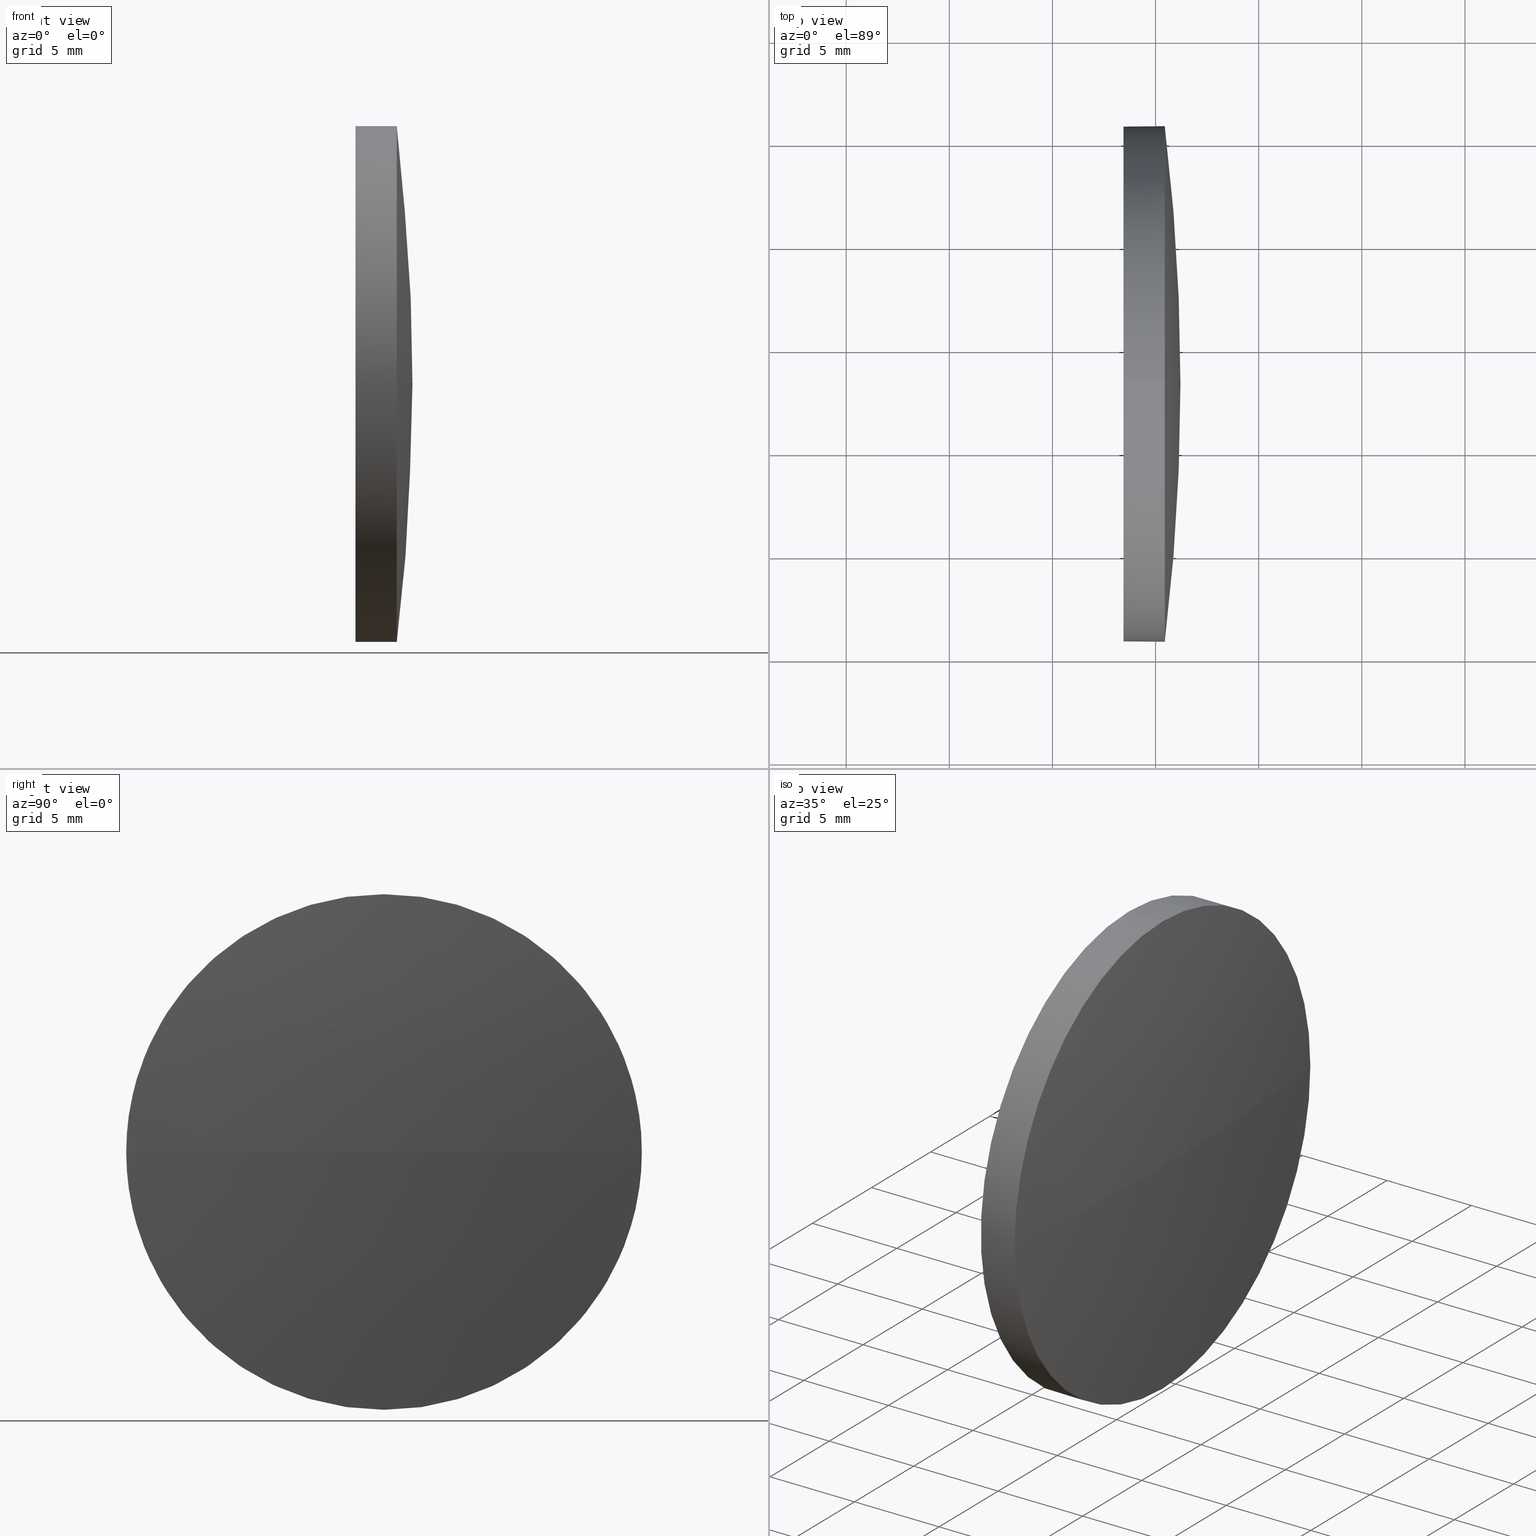
[diagram: canonical four-view strip — front | top / right | iso, engineering-drawing reading convention]
A machine part, canonical four-view strip (front | top / right | iso — engineering-drawing reading convention). The complete STEP part file that produces these views, byte-faithful:
ISO-10303-21;
HEADER;
FILE_DESCRIPTION (( 'STEP AP214' ),
    '1' );
FILE_NAME ('100133.STEP',
    '2019-05-15T01:51:21',
    ( '' ),
    ( '' ),
    'SwSTEP 2.0',
    'SolidWorks 2016',
    '' );
FILE_SCHEMA (( 'AUTOMOTIVE_DESIGN' ));
ENDSEC;

DATA;
#1 = CIRCLE ( 'NONE', #155, 12.49999999999999600 ) ;
#2 = VERTEX_POINT ( 'NONE', #161 ) ;
#3 = EDGE_CURVE ( 'NONE', #50, #124, #34, .T. ) ;
#4 =( NAMED_UNIT ( * ) PLANE_ANGLE_UNIT ( ) SI_UNIT ( $, .RADIAN. ) );
#5 = FACE_OUTER_BOUND ( 'NONE', #70, .T. ) ;
#6 = CARTESIAN_POINT ( 'NONE',  ( 303.0318704595082400, 108.2513484294472100, 0.0000000000000000000 ) ) ;
#7 = DIRECTION ( 'NONE',  ( -1.000000000000000000, -0.0000000000000000000, -0.0000000000000000000 ) ) ;
#8 = DIRECTION ( 'NONE',  ( 0.0000000000000000000, 0.0000000000000000000, 1.000000000000000000 ) ) ;
#9 = PRODUCT_RELATED_PRODUCT_CATEGORY ( 'part', '', ( #22 ) ) ;
#10 = ADVANCED_FACE ( 'NONE', ( #75 ), #104, .T. ) ;
#11 = DIRECTION ( 'NONE',  ( 0.0000000000000000000, 0.0000000000000000000, 1.000000000000000000 ) ) ;
#12 = ORIENTED_EDGE ( 'NONE', *, *, #141, .T. ) ;
#13 = EDGE_CURVE ( 'NONE', #90, #50, #142, .T. ) ;
#14 = AXIS2_PLACEMENT_3D ( 'NONE', #20, #179, #18 ) ;
#15 = PLANE ( 'NONE',  #49 ) ;
#16 = ORIENTED_EDGE ( 'NONE', *, *, #42, .F. ) ;
#17 =( NAMED_UNIT ( * ) SI_UNIT ( $, .STERADIAN. ) SOLID_ANGLE_UNIT ( ) );
#18 = DIRECTION ( 'NONE',  ( 0.0000000000000000000, 0.0000000000000000000, 1.000000000000000000 ) ) ;
#19 = EDGE_CURVE ( 'NONE', #159, #2, #67, .T. ) ;
#20 = CARTESIAN_POINT ( 'NONE',  ( 405.4479230910874300, 108.2513484294471600, 0.0000000000000000000 ) ) ;
#21 = PRODUCT_DEFINITION_FORMATION_WITH_SPECIFIED_SOURCE ( '�κ�', '', #22, .NOT_KNOWN. ) ;
#22 = PRODUCT ( '100133', '100133', '', ( #98 ) ) ;
#23 = ORIENTED_EDGE ( 'NONE', *, *, #138, .T. ) ;
#24 = AXIS2_PLACEMENT_3D ( 'NONE', #92, #66, #178 ) ;
#25 = UNCERTAINTY_MEASURE_WITH_UNIT (LENGTH_MEASURE( 1.000000000000000100E-005 ), #160, 'distance_accuracy_value', 'NONE');
#26 = COLOUR_RGB ( '',1.000000000000000000, 1.000000000000000000, 1.000000000000000000 ) ;
#27 = EDGE_CURVE ( 'NONE', #52, #90, #145, .T. ) ;
#28 = ORIENTED_EDGE ( 'NONE', *, *, #3, .T. ) ;
#29 = DIRECTION ( 'NONE',  ( 0.0000000000000000000, 0.0000000000000000000, 1.000000000000000000 ) ) ;
#30 = CYLINDRICAL_SURFACE ( 'NONE', #101, 12.49999999999999600 ) ;
#31 = AXIS2_PLACEMENT_3D ( 'NONE', #164, #106, #108 ) ;
#32 = CARTESIAN_POINT ( 'NONE',  ( 405.4479230910874300, 120.7513484294471200, 1.530808498934179500E-015 ) ) ;
#33 = CARTESIAN_POINT ( 'NONE',  ( 401.0823071883264700, 108.2513484294471600, 0.0000000000000000000 ) ) ;
#34 = LINE ( 'NONE', #174, #97 ) ;
#35 = DIRECTION ( 'NONE',  ( -1.000000000000000000, -0.0000000000000000000, -0.0000000000000000000 ) ) ;
#36 = COLOUR_RGB ( '',1.000000000000000000, 1.000000000000000000, 1.000000000000000000 ) ;
#37 = ORIENTED_EDGE ( 'NONE', *, *, #99, .F. ) ;
#38 = MECHANICAL_DESIGN_GEOMETRIC_PRESENTATION_REPRESENTATION (  '', ( #51 ), #175 ) ;
#39 = ORIENTED_EDGE ( 'NONE', *, *, #72, .F. ) ;
#40 = CARTESIAN_POINT ( 'NONE',  ( 405.4479230910874300, 108.2513484294471600, 12.49999999999999600 ) ) ;
#41 = SPHERICAL_SURFACE ( 'NONE', #78, 103.1760526315792000 ) ;
#42 = EDGE_CURVE ( 'NONE', #165, #159, #48, .T. ) ;
#43 = CARTESIAN_POINT ( 'NONE',  ( 303.0318704595082400, 108.2513484294472100, 0.0000000000000000000 ) ) ;
#44 =( NAMED_UNIT ( * ) PLANE_ANGLE_UNIT ( ) SI_UNIT ( $, .RADIAN. ) );
#45 = FILL_AREA_STYLE ('',( #135 ) ) ;
#46 = DIRECTION ( 'NONE',  ( 0.0000000000000000000, 0.0000000000000000000, 1.000000000000000000 ) ) ;
#47 = DIRECTION ( 'NONE',  ( 0.0000000000000000000, 0.0000000000000000000, 1.000000000000000000 ) ) ;
#48 = CIRCLE ( 'NONE', #57, 12.49999999999999600 ) ;
#49 = AXIS2_PLACEMENT_3D ( 'NONE', #162, #182, #115 ) ;
#50 = VERTEX_POINT ( 'NONE', #40 ) ;
#51 = STYLED_ITEM ( 'NONE', ( #120 ), #180 ) ;
#52 = VERTEX_POINT ( 'NONE', #58 ) ;
#53 = AXIS2_PLACEMENT_3D ( 'NONE', #129, #7, #126 ) ;
#54 = CIRCLE ( 'NONE', #24, 103.1760526315792000 ) ;
#55 = MANIFOLD_SOLID_BREP ( '��ת1', #186 ) ;
#56 = SURFACE_SIDE_STYLE ('',( #140 ) ) ;
#57 = AXIS2_PLACEMENT_3D ( 'NONE', #113, #130, #29 ) ;
#58 = CARTESIAN_POINT ( 'NONE',  ( 406.2079230910874200, 108.2513484294472100, 0.0000000000000000000 ) ) ;
#59 = SPHERICAL_SURFACE ( 'NONE', #60, 103.1760526315792000 ) ;
#60 = AXIS2_PLACEMENT_3D ( 'NONE', #6, #11, #118 ) ;
#61 = ORIENTED_EDGE ( 'NONE', *, *, #13, .F. ) ;
#62 = DIRECTION ( 'NONE',  ( 0.0000000000000000000, 0.0000000000000000000, 1.000000000000000000 ) ) ;
#63 = ADVANCED_FACE ( 'NONE', ( #105 ), #15, .F. ) ;
#64 = PRODUCT_DEFINITION_SHAPE ( 'NONE', 'NONE',  #122 ) ;
#65 = ADVANCED_FACE ( 'NONE', ( #5 ), #59, .T. ) ;
#66 = DIRECTION ( 'NONE',  ( 0.0000000000000000000, -1.224646799147353200E-016, 1.000000000000000000 ) ) ;
#67 = LINE ( 'NONE', #87, #109 ) ;
#68 = ORIENTED_EDGE ( 'NONE', *, *, #157, .F. ) ;
#69 = AXIS2_PLACEMENT_3D ( 'NONE', #167, #117, #62 ) ;
#70 = EDGE_LOOP ( 'NONE', ( #103, #82, #112, #61 ) ) ;
#71 = PRESENTATION_LAYER_ASSIGNMENT (  '', '', ( #51 ) ) ;
#72 = EDGE_CURVE ( 'NONE', #159, #90, #133, .T. ) ;
#73 = UNCERTAINTY_MEASURE_WITH_UNIT (LENGTH_MEASURE( 1.000000000000000100E-005 ), #134, 'distance_accuracy_value', 'NONE');
#74 = FILL_AREA_STYLE_COLOUR ( '', #26 ) ;
#75 = FACE_OUTER_BOUND ( 'NONE', #86, .T. ) ;
#76 = CARTESIAN_POINT ( 'NONE',  ( 303.0318704595082400, 108.2513484294472100, 0.0000000000000000000 ) ) ;
#77 = AXIS2_PLACEMENT_3D ( 'NONE', #89, #147, #132 ) ;
#78 = AXIS2_PLACEMENT_3D ( 'NONE', #43, #46, #152 ) ;
#79 = ADVANCED_FACE ( 'NONE', ( #85 ), #41, .T. ) ;
#80 = DIRECTION ( 'NONE',  ( -1.000000000000000000, -0.0000000000000000000, -0.0000000000000000000 ) ) ;
#81 =( LENGTH_UNIT ( ) NAMED_UNIT ( * ) SI_UNIT ( .MILLI., .METRE. ) );
#82 = ORIENTED_EDGE ( 'NONE', *, *, #99, .T. ) ;
#83 = SURFACE_STYLE_USAGE ( .BOTH. , #166 ) ;
#84 = MECHANICAL_DESIGN_GEOMETRIC_PRESENTATION_REPRESENTATION (  '', ( #131 ), #146 ) ;
#85 = FACE_OUTER_BOUND ( 'NONE', #170, .T. ) ;
#86 = EDGE_LOOP ( 'NONE', ( #128, #111, #123, #28, #156 ) ) ;
#87 = CARTESIAN_POINT ( 'NONE',  ( 401.0823071883264700, 108.2513484294471600, -12.49999999999999600 ) ) ;
#88 = SURFACE_STYLE_USAGE ( .BOTH. , #56 ) ;
#89 = CARTESIAN_POINT ( 'NONE',  ( 405.4479230910874300, 108.2513484294471600, 0.0000000000000000000 ) ) ;
#90 = VERTEX_POINT ( 'NONE', #114 ) ;
#91 = DIRECTION ( 'NONE',  ( -1.000000000000000000, -0.0000000000000000000, -0.0000000000000000000 ) ) ;
#92 = CARTESIAN_POINT ( 'NONE',  ( 303.0318704595082400, 108.2513484294472100, 0.0000000000000000000 ) ) ;
#93 = ORIENTED_EDGE ( 'NONE', *, *, #42, .T. ) ;
#94 =( NAMED_UNIT ( * ) SI_UNIT ( $, .STERADIAN. ) SOLID_ANGLE_UNIT ( ) );
#95 = ADVANCED_FACE ( 'NONE', ( #100 ), #30, .T. ) ;
#96 =( NAMED_UNIT ( * ) SI_UNIT ( $, .STERADIAN. ) SOLID_ANGLE_UNIT ( ) );
#97 = VECTOR ( 'NONE', #173, 1000.000000000000000 ) ;
#98 = PRODUCT_CONTEXT ( 'NONE', #149, 'mechanical' ) ;
#99 = EDGE_CURVE ( 'NONE', #52, #165, #54, .T. ) ;
#100 = FACE_OUTER_BOUND ( 'NONE', #102, .T. ) ;
#101 = AXIS2_PLACEMENT_3D ( 'NONE', #33, #35, #8 ) ;
#102 = EDGE_LOOP ( 'NONE', ( #93, #125, #68, #151, #12 ) ) ;
#103 = ORIENTED_EDGE ( 'NONE', *, *, #27, .F. ) ;
#104 = CYLINDRICAL_SURFACE ( 'NONE', #53, 12.49999999999999600 ) ;
#105 = FACE_OUTER_BOUND ( 'NONE', #177, .T. ) ;
#106 = DIRECTION ( 'NONE',  ( -1.000000000000000000, -0.0000000000000000000, -0.0000000000000000000 ) ) ;
#107 =( GEOMETRIC_REPRESENTATION_CONTEXT ( 3 ) GLOBAL_UNCERTAINTY_ASSIGNED_CONTEXT ( ( #73 ) ) GLOBAL_UNIT_ASSIGNED_CONTEXT ( ( #134, #44, #17 ) ) REPRESENTATION_CONTEXT ( 'NONE', 'WORKASPACE' ) );
#108 = DIRECTION ( 'NONE',  ( 0.0000000000000000000, 0.0000000000000000000, 1.000000000000000000 ) ) ;
#109 = VECTOR ( 'NONE', #91, 1000.000000000000000 ) ;
#110 = CIRCLE ( 'NONE', #14, 12.49999999999999600 ) ;
#111 = ORIENTED_EDGE ( 'NONE', *, *, #72, .T. ) ;
#112 = ORIENTED_EDGE ( 'NONE', *, *, #141, .F. ) ;
#113 = CARTESIAN_POINT ( 'NONE',  ( 405.4479230910874300, 108.2513484294471600, 0.0000000000000000000 ) ) ;
#114 = CARTESIAN_POINT ( 'NONE',  ( 405.4479230910874300, 95.75134842944724800, 0.0000000000000000000 ) ) ;
#115 = DIRECTION ( 'NONE',  ( 0.0000000000000000000, 0.0000000000000000000, -1.000000000000000000 ) ) ;
#116 = SHAPE_DEFINITION_REPRESENTATION ( #64, #180 ) ;
#117 = DIRECTION ( 'NONE',  ( -1.000000000000000000, -0.0000000000000000000, -0.0000000000000000000 ) ) ;
#118 = DIRECTION ( 'NONE',  ( 0.0000000000000000000, -1.000000000000000000, 0.0000000000000000000 ) ) ;
#119 = CARTESIAN_POINT ( 'NONE',  ( 403.4479230910874300, 108.2513484294471600, 0.0000000000000000000 ) ) ;
#120 = PRESENTATION_STYLE_ASSIGNMENT (( #83 ) ) ;
#121 = AXIS2_PLACEMENT_3D ( 'NONE', #76, #171, #127 ) ;
#122 = PRODUCT_DEFINITION ( 'δ֪', '', #21, #137 ) ;
#123 = ORIENTED_EDGE ( 'NONE', *, *, #13, .T. ) ;
#124 = VERTEX_POINT ( 'NONE', #150 ) ;
#125 = ORIENTED_EDGE ( 'NONE', *, *, #19, .T. ) ;
#126 = DIRECTION ( 'NONE',  ( 0.0000000000000000000, 0.0000000000000000000, 1.000000000000000000 ) ) ;
#127 = DIRECTION ( 'NONE',  ( -1.000000000000000000, 0.0000000000000000000, 0.0000000000000000000 ) ) ;
#128 = ORIENTED_EDGE ( 'NONE', *, *, #19, .F. ) ;
#129 = CARTESIAN_POINT ( 'NONE',  ( 401.0823071883264700, 108.2513484294471600, 0.0000000000000000000 ) ) ;
#130 = DIRECTION ( 'NONE',  ( -1.000000000000000000, -0.0000000000000000000, -0.0000000000000000000 ) ) ;
#131 = STYLED_ITEM ( 'NONE', ( #172 ), #55 ) ;
#132 = DIRECTION ( 'NONE',  ( 0.0000000000000000000, 0.0000000000000000000, 1.000000000000000000 ) ) ;
#133 = CIRCLE ( 'NONE', #31, 12.49999999999999600 ) ;
#134 =( LENGTH_UNIT ( ) NAMED_UNIT ( * ) SI_UNIT ( .MILLI., .METRE. ) );
#135 = FILL_AREA_STYLE_COLOUR ( '', #36 ) ;
#136 = APPLICATION_PROTOCOL_DEFINITION ( 'draft international standard', 'automotive_design', 1998, #149 ) ;
#137 = PRODUCT_DEFINITION_CONTEXT ( 'detailed design', #153, 'design' ) ;
#138 = EDGE_CURVE ( 'NONE', #2, #124, #148, .T. ) ;
#139 = ORIENTED_EDGE ( 'NONE', *, *, #157, .T. ) ;
#140 = SURFACE_STYLE_FILL_AREA ( #144 ) ;
#141 = EDGE_CURVE ( 'NONE', #50, #165, #110, .T. ) ;
#142 = CIRCLE ( 'NONE', #77, 12.49999999999999600 ) ;
#143 = UNCERTAINTY_MEASURE_WITH_UNIT (LENGTH_MEASURE( 1.000000000000000100E-005 ), #81, 'distance_accuracy_value', 'NONE');
#144 = FILL_AREA_STYLE ('',( #74 ) ) ;
#145 = CIRCLE ( 'NONE', #121, 103.1760526315792000 ) ;
#146 =( GEOMETRIC_REPRESENTATION_CONTEXT ( 3 ) GLOBAL_UNCERTAINTY_ASSIGNED_CONTEXT ( ( #25 ) ) GLOBAL_UNIT_ASSIGNED_CONTEXT ( ( #160, #4, #94 ) ) REPRESENTATION_CONTEXT ( 'NONE', 'WORKASPACE' ) );
#147 = DIRECTION ( 'NONE',  ( -1.000000000000000000, -0.0000000000000000000, -0.0000000000000000000 ) ) ;
#148 = CIRCLE ( 'NONE', #69, 12.49999999999999600 ) ;
#149 = APPLICATION_CONTEXT ( 'automotive_design' ) ;
#150 = CARTESIAN_POINT ( 'NONE',  ( 403.4479230910874300, 108.2513484294471600, 12.49999999999999600 ) ) ;
#151 = ORIENTED_EDGE ( 'NONE', *, *, #3, .F. ) ;
#152 = DIRECTION ( 'NONE',  ( 0.0000000000000000000, -1.000000000000000000, 0.0000000000000000000 ) ) ;
#153 = APPLICATION_CONTEXT ( 'automotive_design' ) ;
#154 = PRESENTATION_LAYER_ASSIGNMENT (  '', '', ( #131 ) ) ;
#155 = AXIS2_PLACEMENT_3D ( 'NONE', #119, #80, #163 ) ;
#156 = ORIENTED_EDGE ( 'NONE', *, *, #138, .F. ) ;
#157 = EDGE_CURVE ( 'NONE', #124, #2, #1, .T. ) ;
#158 = SURFACE_STYLE_FILL_AREA ( #45 ) ;
#159 = VERTEX_POINT ( 'NONE', #176 ) ;
#160 =( LENGTH_UNIT ( ) NAMED_UNIT ( * ) SI_UNIT ( .MILLI., .METRE. ) );
#161 = CARTESIAN_POINT ( 'NONE',  ( 403.4479230910874300, 108.2513484294471600, -12.49999999999999600 ) ) ;
#162 = CARTESIAN_POINT ( 'NONE',  ( 403.4479230910874300, 108.2513484294471600, 0.0000000000000000000 ) ) ;
#163 = DIRECTION ( 'NONE',  ( 0.0000000000000000000, 0.0000000000000000000, 1.000000000000000000 ) ) ;
#164 = CARTESIAN_POINT ( 'NONE',  ( 405.4479230910874300, 108.2513484294471600, 0.0000000000000000000 ) ) ;
#165 = VERTEX_POINT ( 'NONE', #32 ) ;
#166 = SURFACE_SIDE_STYLE ('',( #158 ) ) ;
#167 = CARTESIAN_POINT ( 'NONE',  ( 403.4479230910874300, 108.2513484294471600, 0.0000000000000000000 ) ) ;
#168 = APPLICATION_PROTOCOL_DEFINITION ( 'draft international standard', 'automotive_design', 1998, #153 ) ;
#169 = AXIS2_PLACEMENT_3D ( 'NONE', #184, #47, #185 ) ;
#170 = EDGE_LOOP ( 'NONE', ( #37, #183, #39, #16 ) ) ;
#171 = DIRECTION ( 'NONE',  ( 0.0000000000000000000, 0.0000000000000000000, -1.000000000000000000 ) ) ;
#172 = PRESENTATION_STYLE_ASSIGNMENT (( #88 ) ) ;
#173 = DIRECTION ( 'NONE',  ( -1.000000000000000000, -0.0000000000000000000, -0.0000000000000000000 ) ) ;
#174 = CARTESIAN_POINT ( 'NONE',  ( 401.0823071883264700, 108.2513484294471600, 12.49999999999999600 ) ) ;
#175 =( GEOMETRIC_REPRESENTATION_CONTEXT ( 3 ) GLOBAL_UNCERTAINTY_ASSIGNED_CONTEXT ( ( #143 ) ) GLOBAL_UNIT_ASSIGNED_CONTEXT ( ( #81, #181, #96 ) ) REPRESENTATION_CONTEXT ( 'NONE', 'WORKASPACE' ) );
#176 = CARTESIAN_POINT ( 'NONE',  ( 405.4479230910874300, 108.2513484294471600, -12.49999999999999600 ) ) ;
#177 = EDGE_LOOP ( 'NONE', ( #139, #23 ) ) ;
#178 = DIRECTION ( 'NONE',  ( 0.0000000000000000000, -1.000000000000000000, -1.224646799147353200E-016 ) ) ;
#179 = DIRECTION ( 'NONE',  ( -1.000000000000000000, -0.0000000000000000000, -0.0000000000000000000 ) ) ;
#180 = ADVANCED_BREP_SHAPE_REPRESENTATION ( '100133', ( #55, #169 ), #107 ) ;
#181 =( NAMED_UNIT ( * ) PLANE_ANGLE_UNIT ( ) SI_UNIT ( $, .RADIAN. ) );
#182 = DIRECTION ( 'NONE',  ( 1.000000000000000000, 0.0000000000000000000, 0.0000000000000000000 ) ) ;
#183 = ORIENTED_EDGE ( 'NONE', *, *, #27, .T. ) ;
#184 = CARTESIAN_POINT ( 'NONE',  ( 0.0000000000000000000, 0.0000000000000000000, 0.0000000000000000000 ) ) ;
#185 = DIRECTION ( 'NONE',  ( 1.000000000000000000, 0.0000000000000000000, 0.0000000000000000000 ) ) ;
#186 = CLOSED_SHELL ( 'NONE', ( #95, #65, #79, #10, #63 ) ) ;
ENDSEC;
END-ISO-10303-21;
